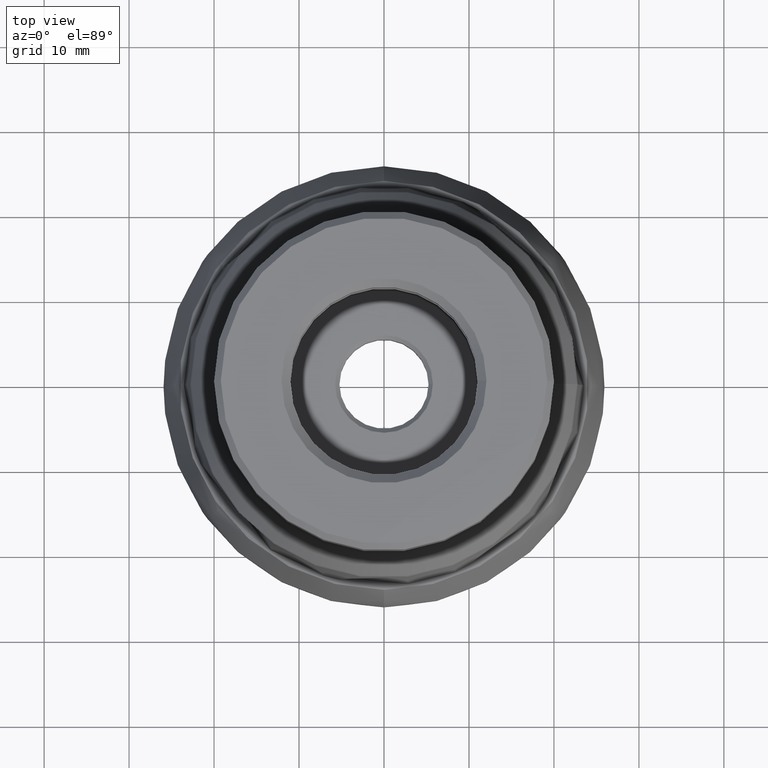
[diagram: clean part render]
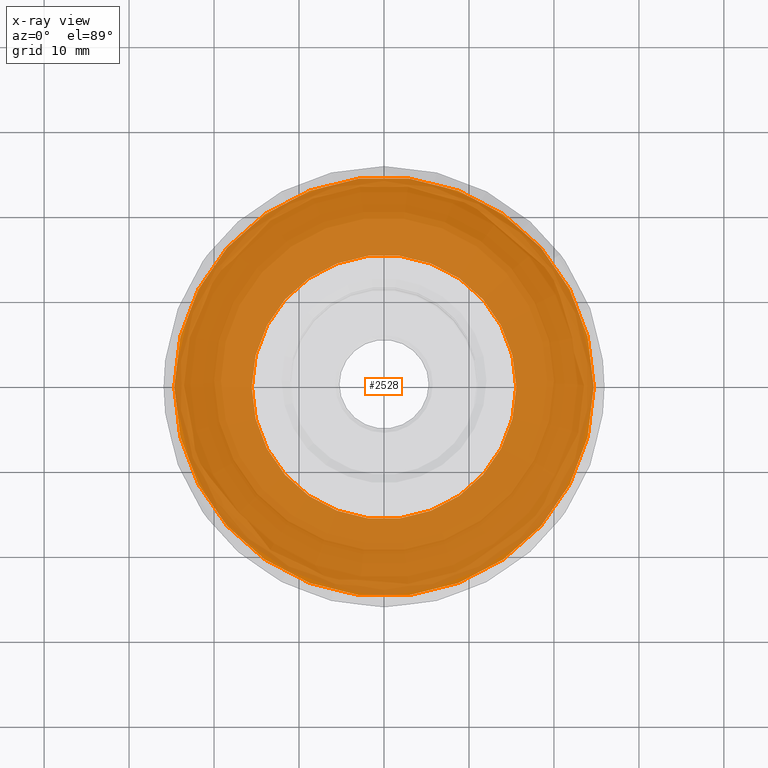
[diagram: x-ray — body ghosted, one internal face saturated and labeled with its STEP entity id]
A machine part, top view, then the same camera in x-ray: the body is ghosted and one INTERNAL B-rep face — a face not visible from any outside direction — is saturated and labeled: STEP entity #2528.
In plain terms, the highlighted conical surface has half-angle 80.637 deg.
Its self-contained STEP definition (entity closure, byte-faithful):
#269 = AXIS2_PLACEMENT_3D ( 'NONE', #436, #270, #2842 ) ;
#270 = DIRECTION ( 'NONE',  ( 0.0000000000000000000, 0.0000000000000000000, -1.000000000000000000 ) ) ;
#300 = EDGE_CURVE ( 'NONE', #917, #917, #858, .T. ) ;
#332 = AXIS2_PLACEMENT_3D ( 'NONE', #751, #2069, #2125 ) ;
#387 = ORIENTED_EDGE ( 'NONE', *, *, #300, .T. ) ;
#436 = CARTESIAN_POINT ( 'NONE',  ( 0.0000000000000000000, 0.0000000000000000000, -2.487035994722014200 ) ) ;
#751 = CARTESIAN_POINT ( 'NONE',  ( 0.0000000000000000000, 0.0000000000000000000, -2.487035994722014200 ) ) ;
#858 = CIRCLE ( 'NONE', #332, 24.68448749625764900 ) ;
#917 = VERTEX_POINT ( 'NONE', #1349 ) ;
#1050 = CONICAL_SURFACE ( 'NONE', #269, 24.68448749625764900, 1.407385551169175500 ) ;
#1057 = DIRECTION ( 'NONE',  ( -0.0000000000000000000, -0.0000000000000000000, 1.000000000000000000 ) ) ;
#1273 = CARTESIAN_POINT ( 'NONE',  ( 0.0000000000000000000, 0.0000000000000000000, -0.9831741368275352900 ) ) ;
#1349 = CARTESIAN_POINT ( 'NONE',  ( 24.68448749625764900, 0.0000000000000000000, -2.487035994722014200 ) ) ;
#1379 = EDGE_LOOP ( 'NONE', ( #387 ) ) ;
#1589 = AXIS2_PLACEMENT_3D ( 'NONE', #1273, #1057, #1971 ) ;
#1823 = EDGE_CURVE ( 'NONE', #1872, #1872, #2611, .T. ) ;
#1872 = VERTEX_POINT ( 'NONE', #2661 ) ;
#1971 = DIRECTION ( 'NONE',  ( 1.000000000000000000, 0.0000000000000000000, 0.0000000000000000000 ) ) ;
#2069 = DIRECTION ( 'NONE',  ( -0.0000000000000000000, -0.0000000000000000000, 1.000000000000000000 ) ) ;
#2125 = DIRECTION ( 'NONE',  ( 1.000000000000000000, 0.0000000000000000000, 0.0000000000000000000 ) ) ;
#2284 = FACE_BOUND ( 'NONE', #2838, .T. ) ;
#2299 = ORIENTED_EDGE ( 'NONE', *, *, #1823, .F. ) ;
#2528 = ADVANCED_FACE ( 'NONE', ( #2284, #2897 ), #1050, .T. ) ;
#2611 = CIRCLE ( 'NONE', #1589, 15.56359539813289000 ) ;
#2661 = CARTESIAN_POINT ( 'NONE',  ( 15.56359539813289000, 0.0000000000000000000, -0.9831741368275352900 ) ) ;
#2838 = EDGE_LOOP ( 'NONE', ( #2299 ) ) ;
#2842 = DIRECTION ( 'NONE',  ( -1.000000000000000000, 0.0000000000000000000, 0.0000000000000000000 ) ) ;
#2897 = FACE_OUTER_BOUND ( 'NONE', #1379, .T. ) ;